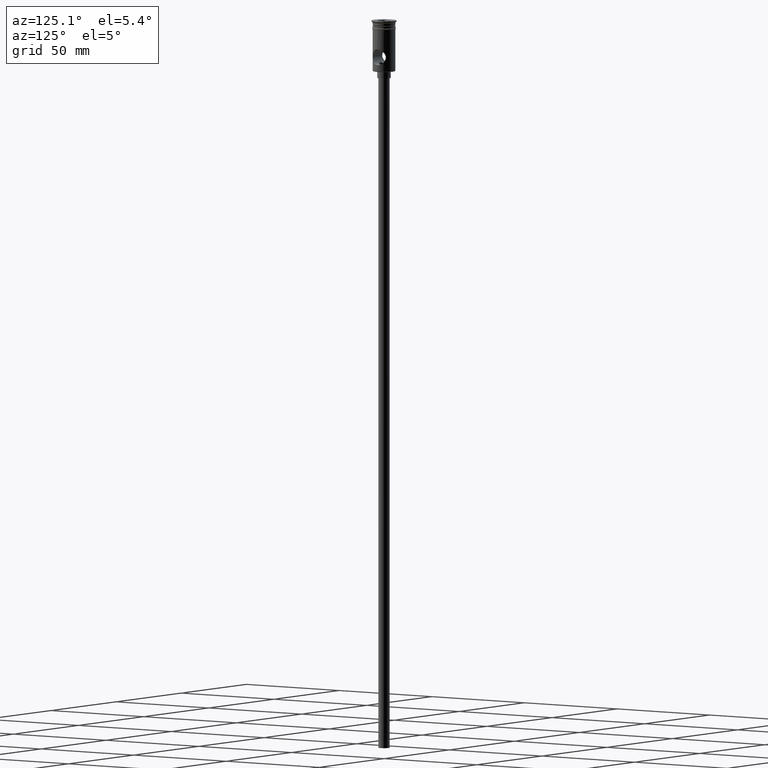
[diagram: clean part render]
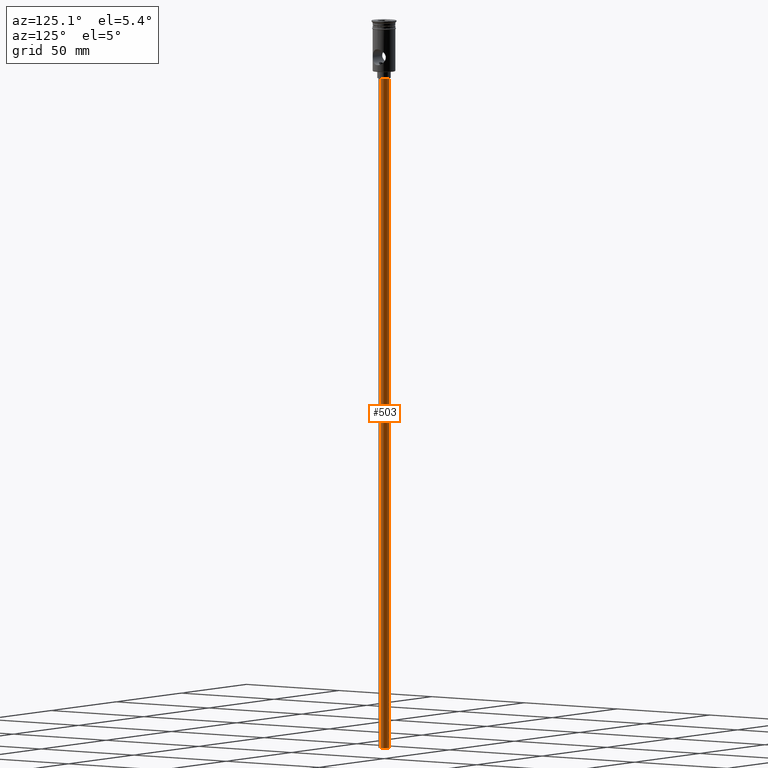
[diagram: same view with one face highlighted and labeled with its STEP entity id]
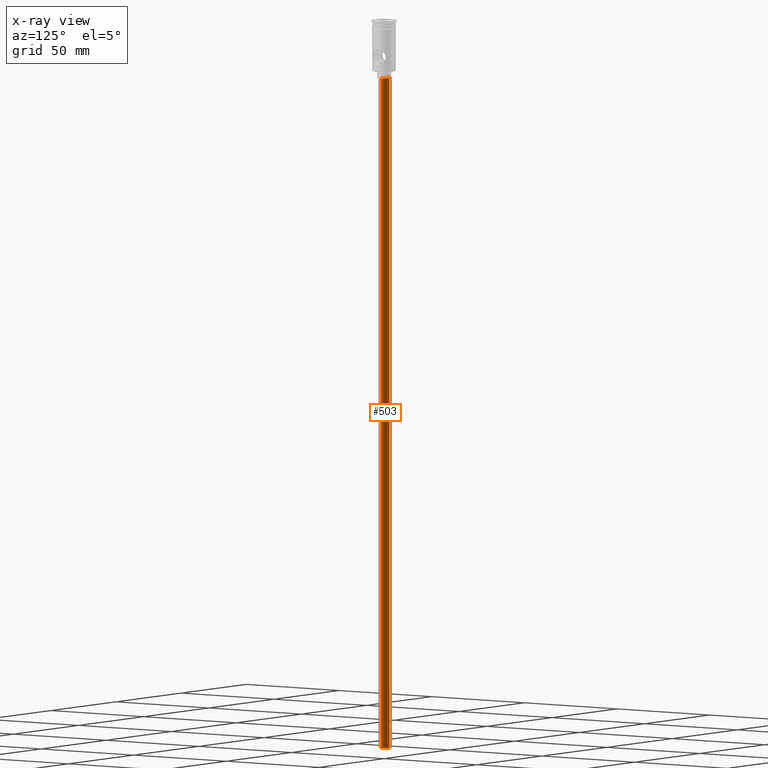
[diagram: x-ray of the same camera — body ghosted, the highlighted face saturated]
A machine part, auxiliary view. The second image highlights one B-rep face of the part: STEP entity #503.
The next image is the same camera in x-ray: the body ghosted, the highlighted face saturated — about 0% of this face is hidden behind the body in this view.
In plain terms, the highlighted cylindrical surface (edge-blend (fillet) strip) has radius 2.5 mm, axis along (-0, -0, 1).
Its self-contained STEP definition (entity closure, byte-faithful):
#48 = CARTESIAN_POINT ( 'NONE',  ( -2.500000000000000000, 3.061616997868383141E-16, -322.5000000000000000 ) ) ;
#56 = ORIENTED_EDGE ( 'NONE', *, *, #1109, .F. ) ;
#58 = LINE ( 'NONE', #841, #651 ) ;
#60 = CARTESIAN_POINT ( 'NONE',  ( 2.500000000000000000, 0.000000000000000000, -25.50000000000000000 ) ) ;
#236 = AXIS2_PLACEMENT_3D ( 'NONE', #587, #733, #1168 ) ;
#304 = DIRECTION ( 'NONE',  ( -0.000000000000000000, -0.000000000000000000, 1.000000000000000000 ) ) ;
#370 = CARTESIAN_POINT ( 'NONE',  ( 2.500000000000000000, 0.000000000000000000, -322.5000000000000000 ) ) ;
#376 = FACE_OUTER_BOUND ( 'NONE', #876, .T. ) ;
#384 = CYLINDRICAL_SURFACE ( 'NONE', #236, 2.500000000000000000 ) ;
#464 = VERTEX_POINT ( 'NONE', #906 ) ;
#474 = CARTESIAN_POINT ( 'NONE',  ( 0.000000000000000000, 0.000000000000000000, -25.50000000000000000 ) ) ;
#503 = ADVANCED_FACE ( 'NONE', ( #376 ), #384, .T. ) ;
#515 = VECTOR ( 'NONE', #304, 1000.000000000000000 ) ;
#527 = DIRECTION ( 'NONE',  ( 0.000000000000000000, 0.000000000000000000, -1.000000000000000000 ) ) ;
#587 = CARTESIAN_POINT ( 'NONE',  ( 0.000000000000000000, 0.000000000000000000, -322.5000000000000000 ) ) ;
#634 = DIRECTION ( 'NONE',  ( -1.000000000000000000, 0.000000000000000000, 0.000000000000000000 ) ) ;
#651 = VECTOR ( 'NONE', #1295, 1000.000000000000000 ) ;
#653 = AXIS2_PLACEMENT_3D ( 'NONE', #474, #938, #1265 ) ;
#712 = VERTEX_POINT ( 'NONE', #370 ) ;
#733 = DIRECTION ( 'NONE',  ( -0.000000000000000000, -0.000000000000000000, 1.000000000000000000 ) ) ;
#772 = LINE ( 'NONE', #48, #515 ) ;
#788 = CIRCLE ( 'NONE', #1276, 2.500000000000000000 ) ;
#790 = ORIENTED_EDGE ( 'NONE', *, *, #1078, .F. ) ;
#841 = CARTESIAN_POINT ( 'NONE',  ( 2.500000000000000000, 0.000000000000000000, -322.5000000000000000 ) ) ;
#849 = CARTESIAN_POINT ( 'NONE',  ( 0.000000000000000000, 0.000000000000000000, -322.5000000000000000 ) ) ;
#876 = EDGE_LOOP ( 'NONE', ( #790, #1354, #1352, #56 ) ) ;
#906 = CARTESIAN_POINT ( 'NONE',  ( -2.500000000000000000, 3.061616997868383141E-16, -322.5000000000000000 ) ) ;
#938 = DIRECTION ( 'NONE',  ( 0.000000000000000000, 0.000000000000000000, -1.000000000000000000 ) ) ;
#1066 = VERTEX_POINT ( 'NONE', #1177 ) ;
#1078 = EDGE_CURVE ( 'NONE', #464, #712, #788, .T. ) ;
#1109 = EDGE_CURVE ( 'NONE', #712, #1186, #58, .T. ) ;
#1168 = DIRECTION ( 'NONE',  ( 1.000000000000000000, 0.000000000000000000, 0.000000000000000000 ) ) ;
#1177 = CARTESIAN_POINT ( 'NONE',  ( -2.500000000000000000, 3.061616997868383141E-16, -25.50000000000000000 ) ) ;
#1186 = VERTEX_POINT ( 'NONE', #60 ) ;
#1248 = CIRCLE ( 'NONE', #653, 2.500000000000000000 ) ;
#1265 = DIRECTION ( 'NONE',  ( -1.000000000000000000, 0.000000000000000000, 0.000000000000000000 ) ) ;
#1276 = AXIS2_PLACEMENT_3D ( 'NONE', #849, #527, #634 ) ;
#1295 = DIRECTION ( 'NONE',  ( -0.000000000000000000, -0.000000000000000000, 1.000000000000000000 ) ) ;
#1307 = EDGE_CURVE ( 'NONE', #464, #1066, #772, .T. ) ;
#1341 = EDGE_CURVE ( 'NONE', #1066, #1186, #1248, .T. ) ;
#1352 = ORIENTED_EDGE ( 'NONE', *, *, #1341, .T. ) ;
#1354 = ORIENTED_EDGE ( 'NONE', *, *, #1307, .T. ) ;